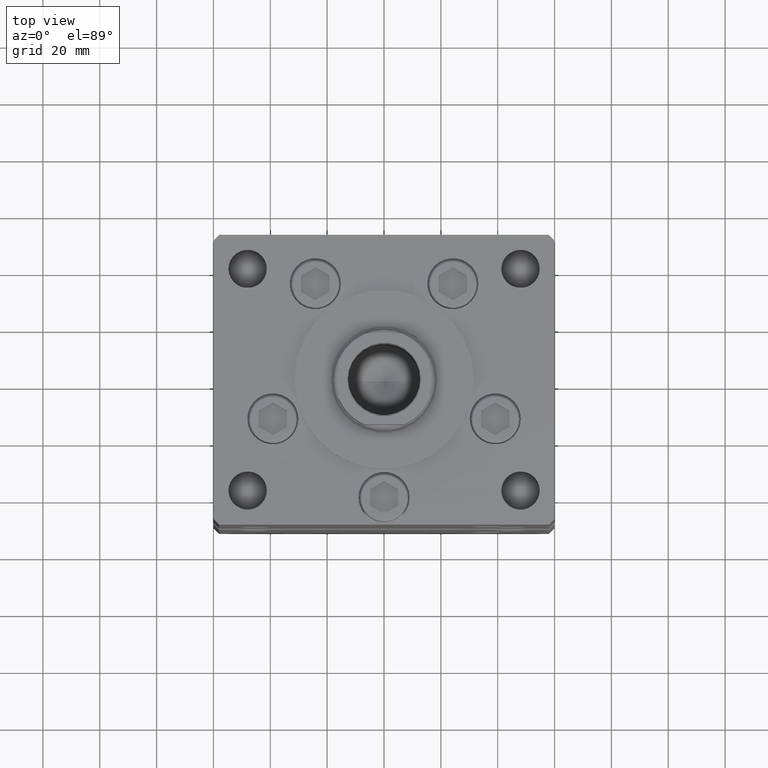
[diagram: clean part render]
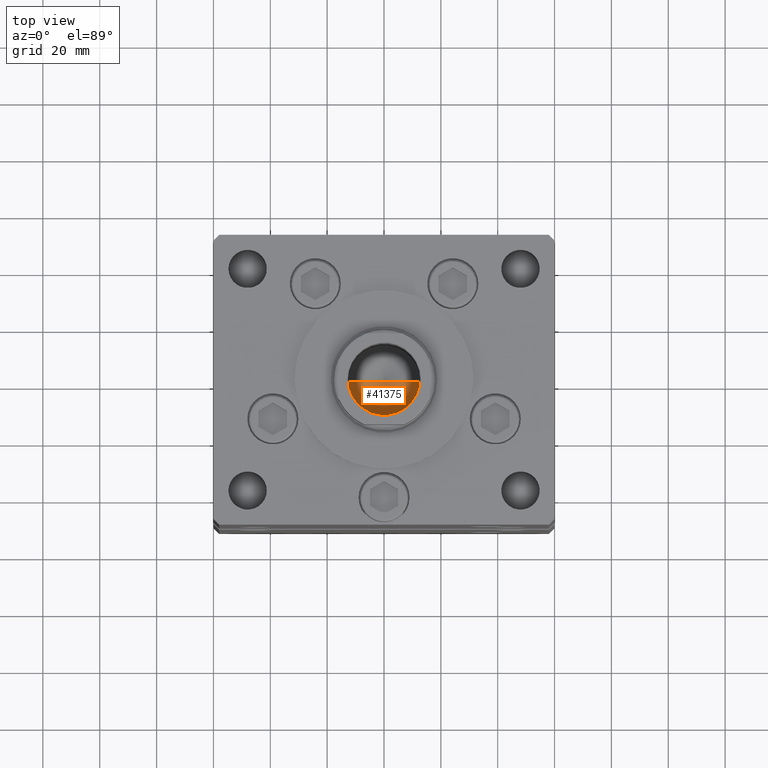
[diagram: same view with one face highlighted and labeled with its STEP entity id]
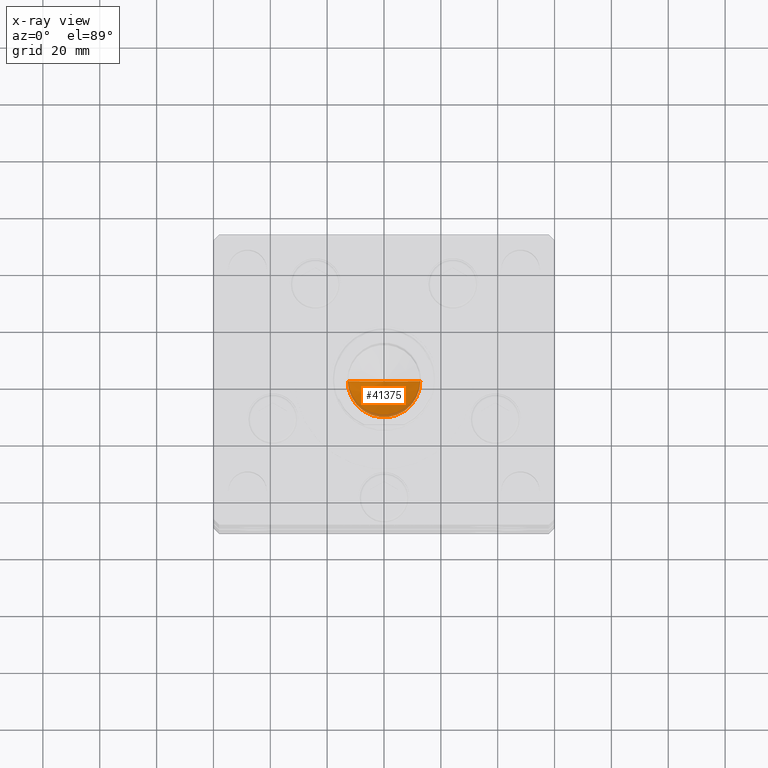
[diagram: x-ray of the same camera — body ghosted, the highlighted face saturated]
A machine part, top view. The second image highlights one B-rep face of the part: STEP entity #41375.
The next image is the same camera in x-ray: the body ghosted, the highlighted face saturated — about 8% of this face is hidden behind the body in this view.
In plain terms, the highlighted conical surface has half-angle 59 deg.
Its self-contained STEP definition (entity closure, byte-faithful):
#2468 = DIRECTION ( 'NONE',  ( 0.8571673007021117785, 0.000000000000000000, 0.5150380749100550437 ) ) ;
#4295 = ORIENTED_EDGE ( 'NONE', *, *, #42948, .T. ) ;
#4569 = VERTEX_POINT ( 'NONE', #45107 ) ;
#5119 = CONICAL_SURFACE ( 'NONE', #16198, 12.74999999999999112, 1.029744258676653423 ) ;
#10134 = CARTESIAN_POINT ( 'NONE',  ( -12.74999999999999112, 1.561424668912874125E-15, 124.2500000000000142 ) ) ;
#11940 = VECTOR ( 'NONE', #2468, 1000.000000000000000 ) ;
#16198 = AXIS2_PLACEMENT_3D ( 'NONE', #27701, #52125, #40854 ) ;
#16369 = EDGE_LOOP ( 'NONE', ( #49141, #4295, #52140 ) ) ;
#18620 = VECTOR ( 'NONE', #52124, 1000.000000000000000 ) ;
#19601 = CARTESIAN_POINT ( 'NONE',  ( 0.000000000000000000, 0.000000000000000000, 124.2500000000000142 ) ) ;
#20083 = CIRCLE ( 'NONE', #26923, 12.74999999999999112 ) ;
#20191 = FACE_OUTER_BOUND ( 'NONE', #16369, .T. ) ;
#23346 = LINE ( 'NONE', #40235, #11940 ) ;
#25908 = EDGE_CURVE ( 'NONE', #40233, #4569, #20083, .T. ) ;
#26923 = AXIS2_PLACEMENT_3D ( 'NONE', #19601, #52325, #32219 ) ;
#27701 = CARTESIAN_POINT ( 'NONE',  ( 0.000000000000000000, 0.000000000000000000, 124.2500000000000142 ) ) ;
#32219 = DIRECTION ( 'NONE',  ( 1.000000000000000000, 0.000000000000000000, 0.000000000000000000 ) ) ;
#32913 = VERTEX_POINT ( 'NONE', #39055 ) ;
#39055 = CARTESIAN_POINT ( 'NONE',  ( -1.307202896762960287E-14, 0.000000000000000000, 116.5890271073986213 ) ) ;
#40058 = LINE ( 'NONE', #10134, #18620 ) ;
#40233 = VERTEX_POINT ( 'NONE', #40909 ) ;
#40235 = CARTESIAN_POINT ( 'NONE',  ( 12.74999999999999112, 0.000000000000000000, 124.2500000000000142 ) ) ;
#40854 = DIRECTION ( 'NONE',  ( 1.000000000000000000, 0.000000000000000000, 0.000000000000000000 ) ) ;
#40909 = CARTESIAN_POINT ( 'NONE',  ( -12.74999999999999112, 1.561424668912874125E-15, 124.2500000000000142 ) ) ;
#41375 = ADVANCED_FACE ( 'NONE', ( #20191 ), #5119, .F. ) ;
#42948 = EDGE_CURVE ( 'NONE', #32913, #40233, #40058, .T. ) ;
#45107 = CARTESIAN_POINT ( 'NONE',  ( 12.74999999999999112, 0.000000000000000000, 124.2500000000000142 ) ) ;
#49141 = ORIENTED_EDGE ( 'NONE', *, *, #49481, .F. ) ;
#49481 = EDGE_CURVE ( 'NONE', #32913, #4569, #23346, .T. ) ;
#52124 = DIRECTION ( 'NONE',  ( -0.8571673007021117785, 1.049727191138617956E-16, 0.5150380749100550437 ) ) ;
#52125 = DIRECTION ( 'NONE',  ( -0.000000000000000000, -0.000000000000000000, 1.000000000000000000 ) ) ;
#52140 = ORIENTED_EDGE ( 'NONE', *, *, #25908, .T. ) ;
#52325 = DIRECTION ( 'NONE',  ( -0.000000000000000000, -0.000000000000000000, 1.000000000000000000 ) ) ;